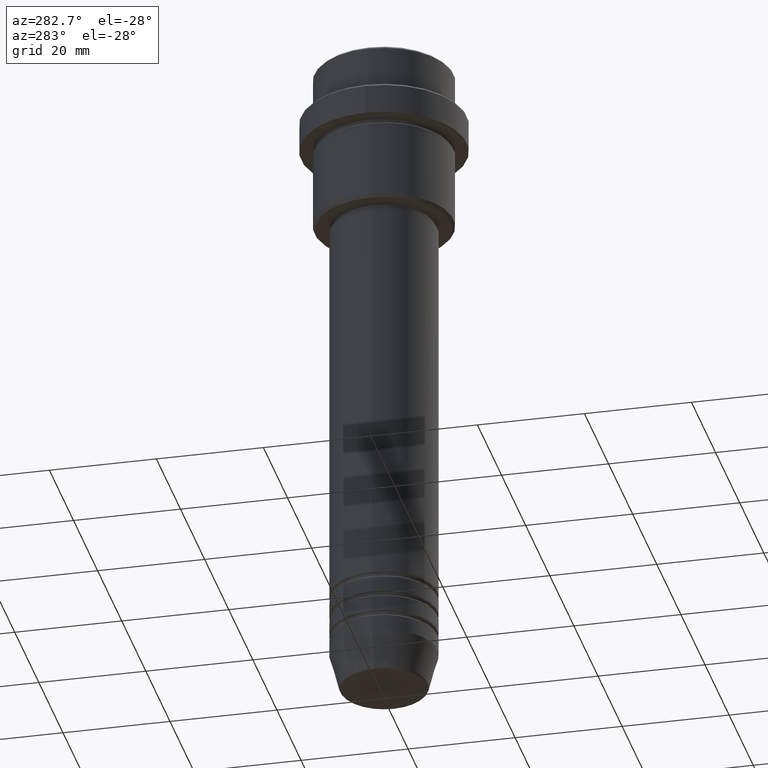
[diagram: clean part render]
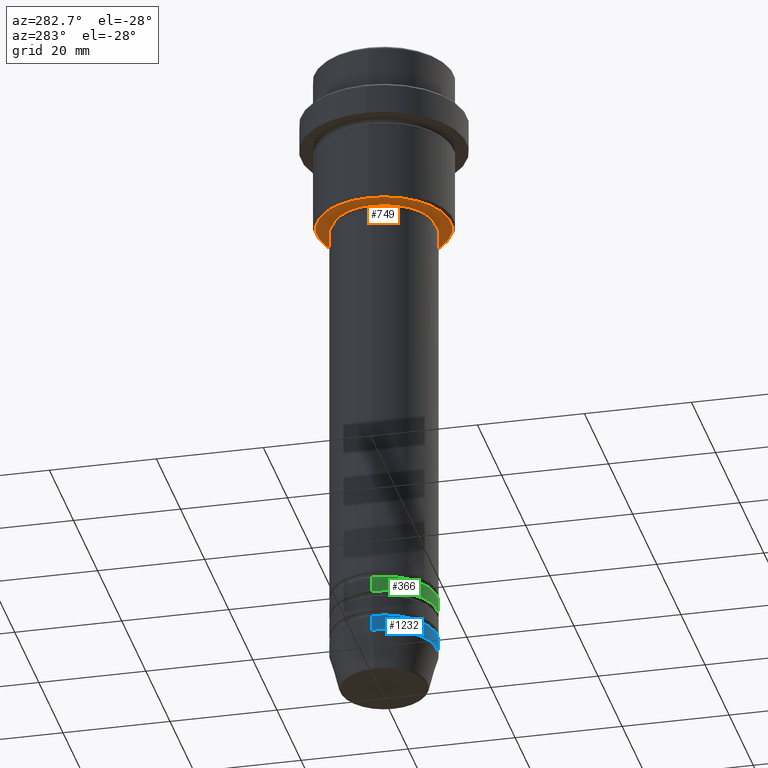
[diagram: same view with three faces highlighted in distinct colors, each labeled with its STEP entity id]
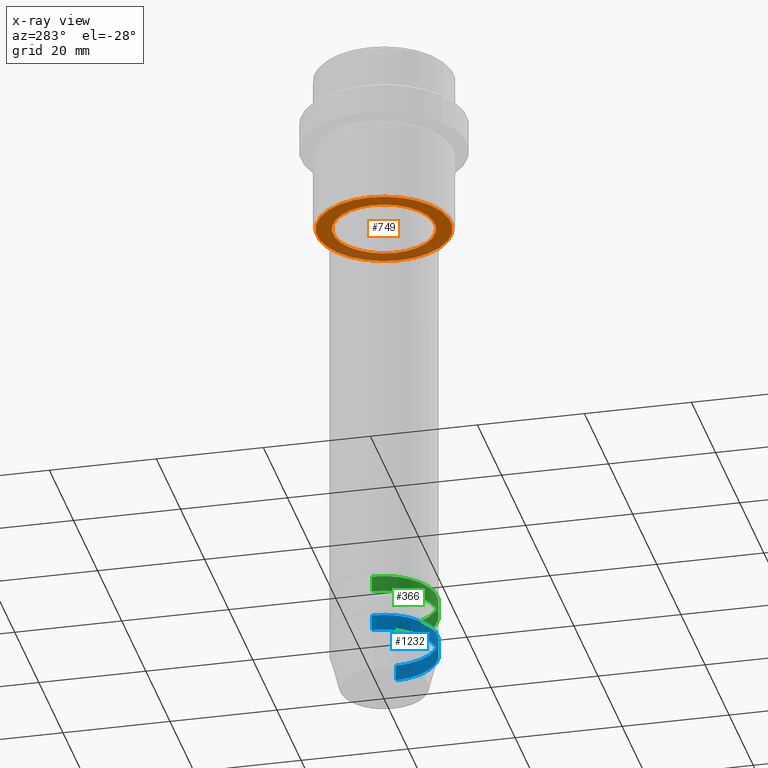
[diagram: x-ray of the same camera — body ghosted, the three highlighted faces saturated]
A machine part, auxiliary view with three faces highlighted in distinct colors.
The next image is the same camera in x-ray (body ghosted, the three faces saturated) — at least one of them is partly hidden behind the body in this view.
Their STEP definitions:

[orange] entity #749 — the highlighted planar face has unit normal (0, 0, -1).
#35 = EDGE_LOOP ( 'NONE', ( #1234, #88 ) ) ;
#46 = CARTESIAN_POINT ( 'NONE',  ( 0.000000000000000000, 0.000000000000000000, -30.99999999999999645 ) ) ;
#72 = DIRECTION ( 'NONE',  ( -0.000000000000000000, -0.000000000000000000, 1.000000000000000000 ) ) ;
#88 = ORIENTED_EDGE ( 'NONE', *, *, #725, .T. ) ;
#116 = AXIS2_PLACEMENT_3D ( 'NONE', #700, #72, #849 ) ;
#124 = EDGE_CURVE ( 'NONE', #1062, #841, #195, .T. ) ;
#195 = CIRCLE ( 'NONE', #874, 12.50000000000001066 ) ;
#216 = CARTESIAN_POINT ( 'NONE',  ( 0.000000000000000000, 0.000000000000000000, -30.99999999999999289 ) ) ;
#280 = DIRECTION ( 'NONE',  ( 1.000000000000000000, 0.000000000000000000, 0.000000000000000000 ) ) ;
#298 = PLANE ( 'NONE',  #1265 ) ;
#349 = AXIS2_PLACEMENT_3D ( 'NONE', #216, #1154, #280 ) ;
#456 = CIRCLE ( 'NONE', #349, 9.499999999999996447 ) ;
#480 = DIRECTION ( 'NONE',  ( -1.000000000000000000, 0.000000000000000000, 0.000000000000000000 ) ) ;
#508 = FACE_BOUND ( 'NONE', #35, .T. ) ;
#544 = VERTEX_POINT ( 'NONE', #1050 ) ;
#577 = ORIENTED_EDGE ( 'NONE', *, *, #882, .T. ) ;
#600 = DIRECTION ( 'NONE',  ( 0.000000000000000000, 0.000000000000000000, -1.000000000000000000 ) ) ;
#700 = CARTESIAN_POINT ( 'NONE',  ( 0.000000000000000000, 0.000000000000000000, -30.99999999999999289 ) ) ;
#711 = CARTESIAN_POINT ( 'NONE',  ( 0.000000000000000000, 13.00000000000000000, -30.99999999999999645 ) ) ;
#725 = EDGE_CURVE ( 'NONE', #736, #544, #456, .T. ) ;
#733 = AXIS2_PLACEMENT_3D ( 'NONE', #969, #1039, #1100 ) ;
#736 = VERTEX_POINT ( 'NONE', #815 ) ;
#738 = EDGE_CURVE ( 'NONE', #544, #736, #1026, .T. ) ;
#749 = ADVANCED_FACE ( 'NONE', ( #1163, #508 ), #298, .T. ) ;
#815 = CARTESIAN_POINT ( 'NONE',  ( -9.499999999999996447, 1.163414459189985091E-15, -30.99999999999999289 ) ) ;
#841 = VERTEX_POINT ( 'NONE', #1069 ) ;
#849 = DIRECTION ( 'NONE',  ( 1.000000000000000000, 0.000000000000000000, 0.000000000000000000 ) ) ;
#874 = AXIS2_PLACEMENT_3D ( 'NONE', #46, #600, #480 ) ;
#882 = EDGE_CURVE ( 'NONE', #841, #1062, #1190, .T. ) ;
#941 = DIRECTION ( 'NONE',  ( 0.000000000000000000, 0.000000000000000000, -1.000000000000000000 ) ) ;
#969 = CARTESIAN_POINT ( 'NONE',  ( 0.000000000000000000, 0.000000000000000000, -30.99999999999999645 ) ) ;
#1026 = CIRCLE ( 'NONE', #116, 9.499999999999996447 ) ;
#1039 = DIRECTION ( 'NONE',  ( 0.000000000000000000, 0.000000000000000000, -1.000000000000000000 ) ) ;
#1050 = CARTESIAN_POINT ( 'NONE',  ( 9.499999999999996447, 0.000000000000000000, -30.99999999999999289 ) ) ;
#1062 = VERTEX_POINT ( 'NONE', #1293 ) ;
#1069 = CARTESIAN_POINT ( 'NONE',  ( -12.50000000000001066, 1.561424668912876097E-15, -30.99999999999999645 ) ) ;
#1085 = EDGE_LOOP ( 'NONE', ( #1338, #577 ) ) ;
#1100 = DIRECTION ( 'NONE',  ( -1.000000000000000000, 0.000000000000000000, 0.000000000000000000 ) ) ;
#1154 = DIRECTION ( 'NONE',  ( -0.000000000000000000, -0.000000000000000000, 1.000000000000000000 ) ) ;
#1163 = FACE_OUTER_BOUND ( 'NONE', #1085, .T. ) ;
#1190 = CIRCLE ( 'NONE', #733, 12.50000000000001066 ) ;
#1234 = ORIENTED_EDGE ( 'NONE', *, *, #738, .T. ) ;
#1265 = AXIS2_PLACEMENT_3D ( 'NONE', #711, #941, #1378 ) ;
#1293 = CARTESIAN_POINT ( 'NONE',  ( 12.50000000000001066, 0.000000000000000000, -30.99999999999999645 ) ) ;
#1338 = ORIENTED_EDGE ( 'NONE', *, *, #124, .T. ) ;
#1378 = DIRECTION ( 'NONE',  ( -1.000000000000000000, 0.000000000000000000, -0.000000000000000000 ) ) ;

[blue] entity #1232 — the highlighted cylindrical surface (partial cylindrical patch) has radius 10 mm, axis along (-0, -0, 1).
#2 = ORIENTED_EDGE ( 'NONE', *, *, #310, .T. ) ;
#69 = AXIS2_PLACEMENT_3D ( 'NONE', #912, #1328, #816 ) ;
#101 = CYLINDRICAL_SURFACE ( 'NONE', #164, 10.00000000000000000 ) ;
#131 = EDGE_CURVE ( 'NONE', #1147, #774, #258, .T. ) ;
#157 = EDGE_CURVE ( 'NONE', #1191, #247, #619, .T. ) ;
#158 = LINE ( 'NONE', #1257, #367 ) ;
#164 = AXIS2_PLACEMENT_3D ( 'NONE', #430, #321, #1183 ) ;
#240 = DIRECTION ( 'NONE',  ( 1.000000000000000000, 0.000000000000000000, 0.000000000000000000 ) ) ;
#247 = VERTEX_POINT ( 'NONE', #377 ) ;
#258 = CIRCLE ( 'NONE', #69, 10.00000000000000000 ) ;
#310 = EDGE_CURVE ( 'NONE', #247, #774, #313, .T. ) ;
#313 = LINE ( 'NONE', #968, #757 ) ;
#321 = DIRECTION ( 'NONE',  ( -0.000000000000000000, -0.000000000000000000, 1.000000000000000000 ) ) ;
#340 = DIRECTION ( 'NONE',  ( -0.000000000000000000, -0.000000000000000000, 1.000000000000000000 ) ) ;
#367 = VECTOR ( 'NONE', #704, 1000.000000000000000 ) ;
#377 = CARTESIAN_POINT ( 'NONE',  ( 10.00000000000000000, 0.000000000000000000, -119.0000000000000000 ) ) ;
#423 = DIRECTION ( 'NONE',  ( -0.000000000000000000, -0.000000000000000000, 1.000000000000000000 ) ) ;
#430 = CARTESIAN_POINT ( 'NONE',  ( 0.000000000000000000, 0.000000000000000000, 0.000000000000000000 ) ) ;
#435 = EDGE_LOOP ( 'NONE', ( #846, #785, #2, #1177 ) ) ;
#558 = CARTESIAN_POINT ( 'NONE',  ( -10.00000000000000000, 1.224646799147353256E-15, -115.9999999999999858 ) ) ;
#619 = CIRCLE ( 'NONE', #1009, 10.00000000000000000 ) ;
#704 = DIRECTION ( 'NONE',  ( -0.000000000000000000, -0.000000000000000000, 1.000000000000000000 ) ) ;
#712 = CARTESIAN_POINT ( 'NONE',  ( 0.000000000000000000, 0.000000000000000000, -119.0000000000000000 ) ) ;
#745 = FACE_OUTER_BOUND ( 'NONE', #435, .T. ) ;
#757 = VECTOR ( 'NONE', #423, 1000.000000000000000 ) ;
#761 = EDGE_CURVE ( 'NONE', #1191, #1147, #158, .T. ) ;
#769 = CARTESIAN_POINT ( 'NONE',  ( 10.00000000000000000, 0.000000000000000000, -115.9999999999999858 ) ) ;
#774 = VERTEX_POINT ( 'NONE', #769 ) ;
#785 = ORIENTED_EDGE ( 'NONE', *, *, #157, .T. ) ;
#816 = DIRECTION ( 'NONE',  ( 1.000000000000000000, 0.000000000000000000, 0.000000000000000000 ) ) ;
#846 = ORIENTED_EDGE ( 'NONE', *, *, #761, .F. ) ;
#912 = CARTESIAN_POINT ( 'NONE',  ( 0.000000000000000000, 0.000000000000000000, -115.9999999999999858 ) ) ;
#968 = CARTESIAN_POINT ( 'NONE',  ( 10.00000000000000000, 0.000000000000000000, 0.000000000000000000 ) ) ;
#1009 = AXIS2_PLACEMENT_3D ( 'NONE', #712, #340, #240 ) ;
#1081 = CARTESIAN_POINT ( 'NONE',  ( -10.00000000000000000, 1.224646799147353256E-15, -119.0000000000000000 ) ) ;
#1147 = VERTEX_POINT ( 'NONE', #558 ) ;
#1177 = ORIENTED_EDGE ( 'NONE', *, *, #131, .F. ) ;
#1183 = DIRECTION ( 'NONE',  ( 1.000000000000000000, 0.000000000000000000, 0.000000000000000000 ) ) ;
#1191 = VERTEX_POINT ( 'NONE', #1081 ) ;
#1232 = ADVANCED_FACE ( 'NONE', ( #745 ), #101, .T. ) ;
#1257 = CARTESIAN_POINT ( 'NONE',  ( -10.00000000000000000, 1.224646799147353256E-15, 0.000000000000000000 ) ) ;
#1328 = DIRECTION ( 'NONE',  ( -0.000000000000000000, -0.000000000000000000, 1.000000000000000000 ) ) ;

[green] entity #366 — the highlighted cylindrical surface (partial cylindrical patch) has radius 10 mm, axis along (-0, -0, 1).
#68 = LINE ( 'NONE', #842, #804 ) ;
#93 = FACE_OUTER_BOUND ( 'NONE', #1221, .T. ) ;
#117 = ORIENTED_EDGE ( 'NONE', *, *, #336, .T. ) ;
#118 = DIRECTION ( 'NONE',  ( -0.000000000000000000, -0.000000000000000000, 1.000000000000000000 ) ) ;
#138 = CARTESIAN_POINT ( 'NONE',  ( 0.000000000000000000, 0.000000000000000000, 0.000000000000000000 ) ) ;
#232 = CARTESIAN_POINT ( 'NONE',  ( -10.00000000000000000, 1.224646799147353256E-15, -110.9999999999998721 ) ) ;
#242 = DIRECTION ( 'NONE',  ( -0.000000000000000000, -0.000000000000000000, 1.000000000000000000 ) ) ;
#254 = VECTOR ( 'NONE', #966, 1000.000000000000000 ) ;
#263 = EDGE_CURVE ( 'NONE', #1134, #1299, #68, .T. ) ;
#273 = CIRCLE ( 'NONE', #438, 10.00000000000000000 ) ;
#336 = EDGE_CURVE ( 'NONE', #1134, #626, #273, .T. ) ;
#352 = DIRECTION ( 'NONE',  ( -0.000000000000000000, -0.000000000000000000, 1.000000000000000000 ) ) ;
#357 = CARTESIAN_POINT ( 'NONE',  ( 0.000000000000000000, 0.000000000000000000, -107.9999999999998721 ) ) ;
#366 = ADVANCED_FACE ( 'NONE', ( #93 ), #1112, .T. ) ;
#382 = DIRECTION ( 'NONE',  ( -0.000000000000000000, -0.000000000000000000, 1.000000000000000000 ) ) ;
#408 = ORIENTED_EDGE ( 'NONE', *, *, #263, .F. ) ;
#438 = AXIS2_PLACEMENT_3D ( 'NONE', #1312, #118, #862 ) ;
#495 = CARTESIAN_POINT ( 'NONE',  ( 10.00000000000000000, 0.000000000000000000, -107.9999999999998721 ) ) ;
#538 = VERTEX_POINT ( 'NONE', #495 ) ;
#566 = AXIS2_PLACEMENT_3D ( 'NONE', #138, #352, #667 ) ;
#608 = ORIENTED_EDGE ( 'NONE', *, *, #672, .T. ) ;
#626 = VERTEX_POINT ( 'NONE', #741 ) ;
#667 = DIRECTION ( 'NONE',  ( 1.000000000000000000, 0.000000000000000000, 0.000000000000000000 ) ) ;
#668 = DIRECTION ( 'NONE',  ( 1.000000000000000000, 0.000000000000000000, 0.000000000000000000 ) ) ;
#672 = EDGE_CURVE ( 'NONE', #626, #538, #1079, .T. ) ;
#741 = CARTESIAN_POINT ( 'NONE',  ( 10.00000000000000000, 0.000000000000000000, -110.9999999999998721 ) ) ;
#748 = CARTESIAN_POINT ( 'NONE',  ( 10.00000000000000000, 0.000000000000000000, 0.000000000000000000 ) ) ;
#762 = CARTESIAN_POINT ( 'NONE',  ( -10.00000000000000000, 1.224646799147353256E-15, -107.9999999999998721 ) ) ;
#804 = VECTOR ( 'NONE', #382, 1000.000000000000000 ) ;
#842 = CARTESIAN_POINT ( 'NONE',  ( -10.00000000000000000, 1.224646799147353256E-15, 0.000000000000000000 ) ) ;
#862 = DIRECTION ( 'NONE',  ( 1.000000000000000000, 0.000000000000000000, 0.000000000000000000 ) ) ;
#966 = DIRECTION ( 'NONE',  ( -0.000000000000000000, -0.000000000000000000, 1.000000000000000000 ) ) ;
#1035 = ORIENTED_EDGE ( 'NONE', *, *, #1379, .F. ) ;
#1079 = LINE ( 'NONE', #748, #254 ) ;
#1112 = CYLINDRICAL_SURFACE ( 'NONE', #566, 10.00000000000000000 ) ;
#1134 = VERTEX_POINT ( 'NONE', #232 ) ;
#1171 = AXIS2_PLACEMENT_3D ( 'NONE', #357, #242, #668 ) ;
#1218 = CIRCLE ( 'NONE', #1171, 10.00000000000000000 ) ;
#1221 = EDGE_LOOP ( 'NONE', ( #408, #117, #608, #1035 ) ) ;
#1299 = VERTEX_POINT ( 'NONE', #762 ) ;
#1312 = CARTESIAN_POINT ( 'NONE',  ( 0.000000000000000000, 0.000000000000000000, -110.9999999999998721 ) ) ;
#1379 = EDGE_CURVE ( 'NONE', #1299, #538, #1218, .T. ) ;